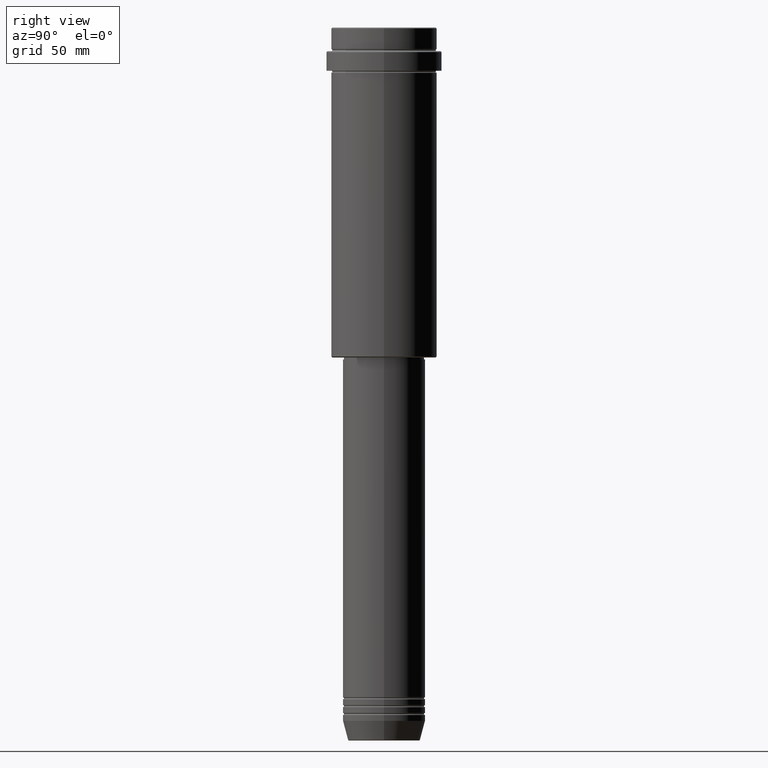
[diagram: clean part render]
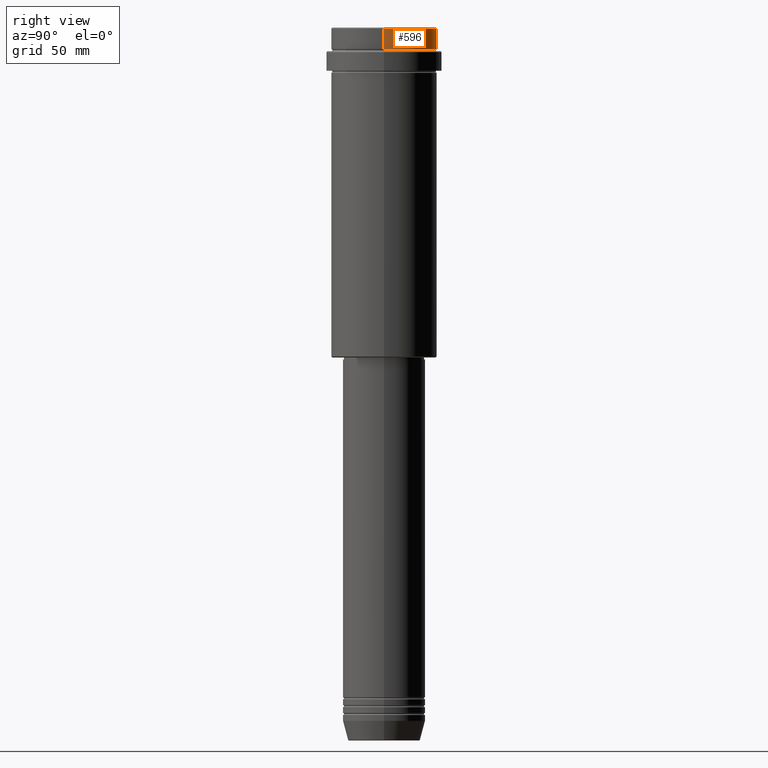
[diagram: same view with one face highlighted and labeled with its STEP entity id]
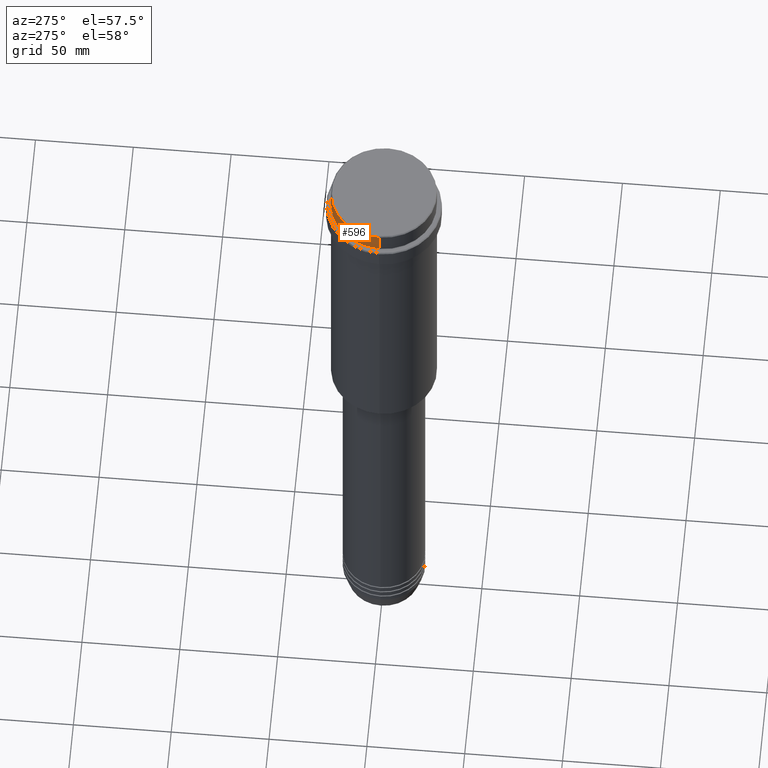
[diagram: same view with one face highlighted and labeled with its STEP entity id]
A machine part, right view. The second image highlights one B-rep face of the part: STEP entity #596.
A second angle (auxiliary view) of the same face is appended — the face is thin or edge-on in the first view.
In plain terms, the highlighted cylindrical surface (partial cylindrical patch) has radius 27 mm, axis along (-0, -0, 1).
Its self-contained STEP definition (entity closure, byte-faithful):
#30 = ORIENTED_EDGE ( 'NONE', *, *, #313, .T. ) ;
#41 = CARTESIAN_POINT ( 'NONE',  ( 27.00000000000000355, 0.000000000000000000, -11.00000000000000178 ) ) ;
#67 = DIRECTION ( 'NONE',  ( -0.000000000000000000, -0.000000000000000000, 1.000000000000000000 ) ) ;
#88 = DIRECTION ( 'NONE',  ( 0.000000000000000000, 0.000000000000000000, -1.000000000000000000 ) ) ;
#94 = LINE ( 'NONE', #1294, #121 ) ;
#112 = DIRECTION ( 'NONE',  ( 1.000000000000000000, 0.000000000000000000, 0.000000000000000000 ) ) ;
#121 = VECTOR ( 'NONE', #1291, 1000.000000000000000 ) ;
#274 = VECTOR ( 'NONE', #67, 1000.000000000000000 ) ;
#290 = DIRECTION ( 'NONE',  ( 1.000000000000000000, 0.000000000000000000, 0.000000000000000000 ) ) ;
#307 = DIRECTION ( 'NONE',  ( 1.000000000000000000, 0.000000000000000000, 0.000000000000000000 ) ) ;
#313 = EDGE_CURVE ( 'NONE', #341, #698, #379, .T. ) ;
#341 = VERTEX_POINT ( 'NONE', #792 ) ;
#379 = LINE ( 'NONE', #483, #274 ) ;
#400 = FACE_OUTER_BOUND ( 'NONE', #470, .T. ) ;
#437 = AXIS2_PLACEMENT_3D ( 'NONE', #1298, #88, #307 ) ;
#470 = EDGE_LOOP ( 'NONE', ( #1360, #30, #885, #1321 ) ) ;
#483 = CARTESIAN_POINT ( 'NONE',  ( -27.00000000000000355, 3.306546357697854128E-15, 0.000000000000000000 ) ) ;
#596 = ADVANCED_FACE ( 'NONE', ( #400 ), #955, .T. ) ;
#628 = CIRCLE ( 'NONE', #1352, 27.00000000000000355 ) ;
#643 = EDGE_CURVE ( 'NONE', #698, #1380, #1058, .T. ) ;
#691 = EDGE_CURVE ( 'NONE', #930, #341, #628, .T. ) ;
#698 = VERTEX_POINT ( 'NONE', #992 ) ;
#757 = DIRECTION ( 'NONE',  ( -0.000000000000000000, -0.000000000000000000, 1.000000000000000000 ) ) ;
#784 = EDGE_CURVE ( 'NONE', #930, #1380, #94, .T. ) ;
#792 = CARTESIAN_POINT ( 'NONE',  ( -27.00000000000000355, 3.306546357697854128E-15, -11.00000000000000178 ) ) ;
#885 = ORIENTED_EDGE ( 'NONE', *, *, #643, .T. ) ;
#930 = VERTEX_POINT ( 'NONE', #41 ) ;
#955 = CYLINDRICAL_SURFACE ( 'NONE', #1148, 27.00000000000000355 ) ;
#961 = CARTESIAN_POINT ( 'NONE',  ( 27.00000000000000355, 0.000000000000000000, -0.4999999999999241163 ) ) ;
#992 = CARTESIAN_POINT ( 'NONE',  ( -27.00000000000000355, 3.306546357697854128E-15, -0.4999999999999241163 ) ) ;
#1058 = CIRCLE ( 'NONE', #437, 27.00000000000000355 ) ;
#1148 = AXIS2_PLACEMENT_3D ( 'NONE', #1391, #1155, #290 ) ;
#1155 = DIRECTION ( 'NONE',  ( -0.000000000000000000, -0.000000000000000000, 1.000000000000000000 ) ) ;
#1196 = CARTESIAN_POINT ( 'NONE',  ( 0.000000000000000000, 0.000000000000000000, -11.00000000000000178 ) ) ;
#1291 = DIRECTION ( 'NONE',  ( -0.000000000000000000, -0.000000000000000000, 1.000000000000000000 ) ) ;
#1294 = CARTESIAN_POINT ( 'NONE',  ( 27.00000000000000355, 0.000000000000000000, 0.000000000000000000 ) ) ;
#1298 = CARTESIAN_POINT ( 'NONE',  ( 0.000000000000000000, 0.000000000000000000, -0.4999999999999241163 ) ) ;
#1321 = ORIENTED_EDGE ( 'NONE', *, *, #784, .F. ) ;
#1352 = AXIS2_PLACEMENT_3D ( 'NONE', #1196, #757, #112 ) ;
#1360 = ORIENTED_EDGE ( 'NONE', *, *, #691, .T. ) ;
#1380 = VERTEX_POINT ( 'NONE', #961 ) ;
#1391 = CARTESIAN_POINT ( 'NONE',  ( 0.000000000000000000, 0.000000000000000000, 0.000000000000000000 ) ) ;